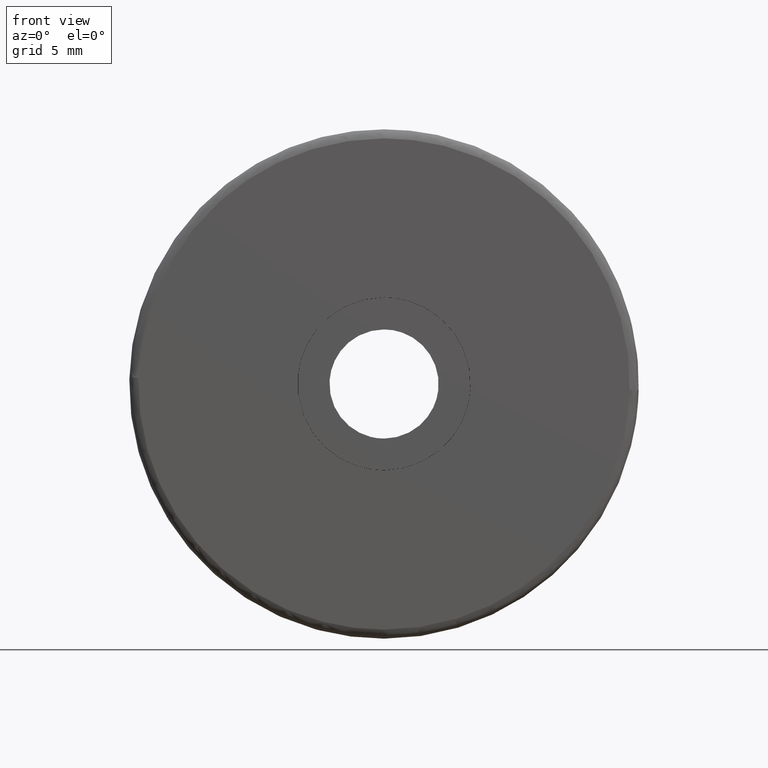
[diagram: clean part render]
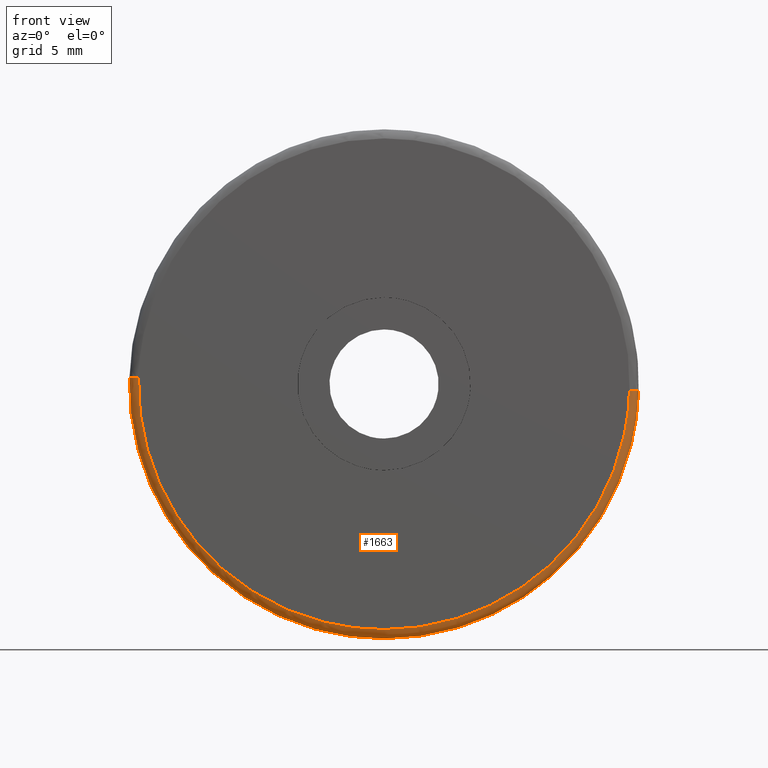
[diagram: same view with one face highlighted and labeled with its STEP entity id]
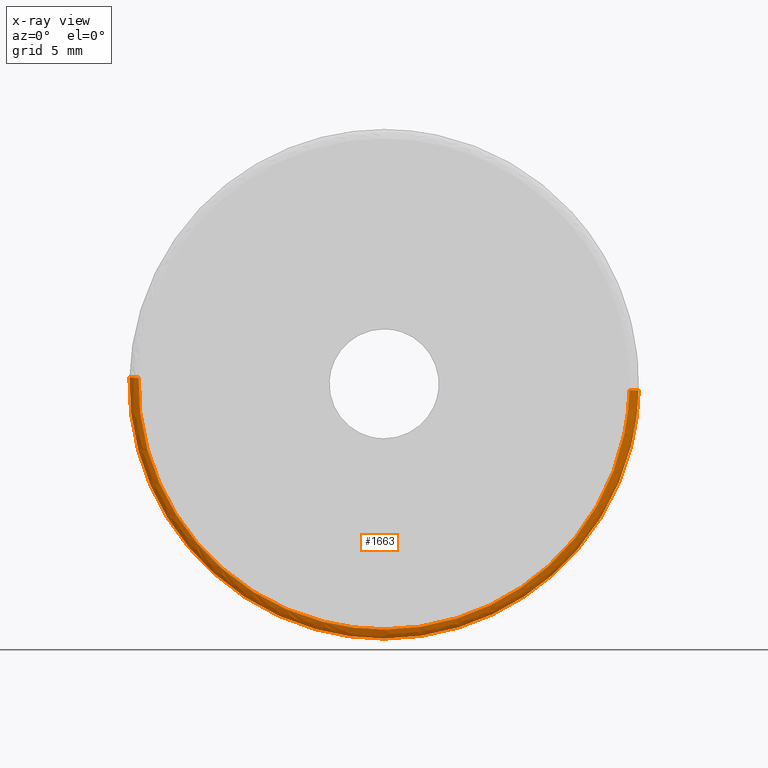
[diagram: x-ray of the same camera — body ghosted, the highlighted face saturated]
A machine part, front view. The second image highlights one B-rep face of the part: STEP entity #1663.
The next image is the same camera in x-ray: the body ghosted, the highlighted face saturated — about 0% of this face is hidden behind the body in this view.
In plain terms, the highlighted face is a freeform B-spline surface patch.
Its self-contained STEP definition (entity closure, byte-faithful):
#1172=CARTESIAN_POINT('',(-13.995578649966189,0.499999999717171,0.351821336206924));
#1173=VERTEX_POINT('',#1172);
#1265=CARTESIAN_POINT('',(13.995578649966189,0.499999999717171,-0.351821336206922));
#1266=VERTEX_POINT('',#1265);
#1282=CARTESIAN_POINT('',(0.0,0.500000000000000,-14.0));
#1283=VERTEX_POINT('',#1282);
#1284=CARTESIAN_POINT('',(0.0,0.500000000000000,-14.0));
#1285=CARTESIAN_POINT('',(13.652490266528705,0.500000000000000,-14.0));
#1286=CARTESIAN_POINT('',(13.995578649966191,0.499999999717171,-0.351821336206922));
#1294=(BOUNDED_CURVE()B_SPLINE_CURVE(2,(#1284,#1285,#1286),.UNSPECIFIED.,.F.,.U.)B_SPLINE_CURVE_WITH_KNOTS((3,3),(0.0,0.245579891769803),.UNSPECIFIED.)CURVE()GEOMETRIC_REPRESENTATION_ITEM()RATIONAL_B_SPLINE_CURVE((1.0,0.712285260094733,0.989826157681565))REPRESENTATION_ITEM(''));
#1295=EDGE_CURVE('',#1283,#1266,#1294,.T.);
#1297=CARTESIAN_POINT('',(-13.995578649966195,0.499999999717171,0.351821336206924));
#1298=CARTESIAN_POINT('',(-13.999999999999995,0.500000000000000,0.175938449727513));
#1299=CARTESIAN_POINT('',(-14.0,0.500000000000000,-1.642359E-016));
#1300=CARTESIAN_POINT('',(-13.999999999999998,0.500000000000000,-13.999999999999998));
#1301=CARTESIAN_POINT('',(0.0,0.500000000000000,-14.0));
#1309=(BOUNDED_CURVE()B_SPLINE_CURVE(2,(#1297,#1298,#1299,#1300,#1301),.UNSPECIFIED.,.F.,.U.)B_SPLINE_CURVE_WITH_KNOTS((3,2,3),(0.745579891769803,0.750000000000000,1.0),.UNSPECIFIED.)CURVE()GEOMETRIC_REPRESENTATION_ITEM()RATIONAL_B_SPLINE_CURVE((0.989826157681565,0.994821521091815,1.0,0.707106781186547,1.0))REPRESENTATION_ITEM(''));
#1310=EDGE_CURVE('',#1173,#1283,#1309,.T.);
#1576=CARTESIAN_POINT('',(-13.994362186306759,0.534862117464669,0.351790756701525));
#1577=CARTESIAN_POINT('',(-14.346152943008287,0.534862117464669,-13.642571429605232));
#1578=CARTESIAN_POINT('',(-0.351790756701529,0.534862117464669,-13.994362186306759));
#1579=CARTESIAN_POINT('',(13.642571429605228,0.534862117464669,-14.346152943008287));
#1580=CARTESIAN_POINT('',(13.994362186306759,0.534862117464669,-0.351790756701530));
#1581=CARTESIAN_POINT('',(-14.034436065313001,-0.038668454222874,0.352798135246677));
#1582=CARTESIAN_POINT('',(-14.387234200559684,-0.038668454222874,-13.681637930066321));
#1583=CARTESIAN_POINT('',(-0.352798135246681,-0.038668454222874,-14.034436065313001));
#1584=CARTESIAN_POINT('',(13.681637930066321,-0.038668454222874,-14.387234200559684));
#1585=CARTESIAN_POINT('',(14.034436065313001,-0.038668454222874,-0.352798135246682));
#1586=CARTESIAN_POINT('',(-13.461071692655768,0.001203861335261,0.338384881978146));
#1587=CARTESIAN_POINT('',(-13.799456574633910,0.001203861335261,-13.122686810677612));
#1588=CARTESIAN_POINT('',(-0.338384881978150,0.001203861335261,-13.461071692655768));
#1589=CARTESIAN_POINT('',(13.122686810677608,0.001203861335261,-13.799456574633913));
#1590=CARTESIAN_POINT('',(13.461071692655768,0.001203861335261,-0.338384881978151));
#1598=(BOUNDED_SURFACE()B_SPLINE_SURFACE(2,2,((#1576,#1581,#1586),(#1577,#1582,#1587),(#1578,#1583,#1588),(#1579,#1584,#1589),(#1580,#1585,#1590)),.UNSPECIFIED.,.F.,.F.,.U.)B_SPLINE_SURFACE_WITH_KNOTS((3,2,3),(3,3),(0.0,23.193943353191301,46.387886706382602),(0.0,0.911185830207336),.UNSPECIFIED.)GEOMETRIC_REPRESENTATION_ITEM()RATIONAL_B_SPLINE_SURFACE(((0.910892962178292,0.599412705021732,0.915967065481264),(0.644098590491372,0.423848788450238,0.647686523345344),(0.910892962178292,0.599412705021732,0.915967065481264),(0.644098590491372,0.423848788450238,0.647686523345344),(0.910892962178292,0.599412705021732,0.915967065481264)))REPRESENTATION_ITEM('')SURFACE());
#1599=CARTESIAN_POINT('',(-13.495736556226859,-1.147476E-015,0.339256288521126));
#1600=VERTEX_POINT('',#1599);
#1601=CARTESIAN_POINT('',(0.0,-2.498002E-015,-13.500000000000000));
#1602=VERTEX_POINT('',#1601);
#1603=CARTESIAN_POINT('',(-13.495736556226861,-1.147476E-015,0.339256288521126));
#1604=CARTESIAN_POINT('',(-13.500000000000002,-2.498002E-015,0.169654933679010));
#1605=CARTESIAN_POINT('',(-13.500000000000000,-2.498002E-015,-1.642359E-016));
#1606=CARTESIAN_POINT('',(-13.500000000000000,-2.498002E-015,-13.500000000000000));
#1607=CARTESIAN_POINT('',(0.0,-2.498002E-015,-13.500000000000000));
#1615=(BOUNDED_CURVE()B_SPLINE_CURVE(2,(#1603,#1604,#1605,#1606,#1607),.UNSPECIFIED.,.F.,.U.)B_SPLINE_CURVE_WITH_KNOTS((3,2,3),(0.745579891769461,0.750000000000000,1.0),.UNSPECIFIED.)CURVE()GEOMETRIC_REPRESENTATION_ITEM()RATIONAL_B_SPLINE_CURVE((0.989826157680792,0.994821521091414,1.0,0.707106781186548,1.0))REPRESENTATION_ITEM(''));
#1616=EDGE_CURVE('',#1600,#1602,#1615,.T.);
#1617=ORIENTED_EDGE('',*,*,#1616,.F.);
#1618=CARTESIAN_POINT('',(-13.995578649966193,0.499999999717171,0.351821336206924));
#1619=CARTESIAN_POINT('',(-13.995578649400715,1.805870E-009,0.351821336192510));
#1620=CARTESIAN_POINT('',(-13.495736556226856,-1.147476E-015,0.339256288521126));
#1628=(BOUNDED_CURVE()B_SPLINE_CURVE(2,(#1618,#1619,#1620),.UNSPECIFIED.,.F.,.U.)B_SPLINE_CURVE_WITH_KNOTS((3,3),(-1.723441280819978,-0.263586882665848),.UNSPECIFIED.)CURVE()GEOMETRIC_REPRESENTATION_ITEM()RATIONAL_B_SPLINE_CURVE((0.883897566728140,0.626638728105204,0.888510407721483))REPRESENTATION_ITEM(''));
#1629=EDGE_CURVE('',#1173,#1600,#1628,.T.);
#1630=ORIENTED_EDGE('',*,*,#1629,.F.);
#1631=ORIENTED_EDGE('',*,*,#1310,.T.);
#1632=ORIENTED_EDGE('',*,*,#1295,.T.);
#1633=CARTESIAN_POINT('',(13.495736556226859,-1.155286E-015,-0.339256288521124));
#1634=VERTEX_POINT('',#1633);
#1635=CARTESIAN_POINT('',(13.995578649966195,0.499999999717171,-0.351821336206922));
#1636=CARTESIAN_POINT('',(13.995578649400716,1.805872E-009,-0.351821336192508));
#1637=CARTESIAN_POINT('',(13.495736556226866,-1.155286E-015,-0.339256288521124));
#1645=(BOUNDED_CURVE()B_SPLINE_CURVE(2,(#1635,#1636,#1637),.UNSPECIFIED.,.F.,.U.)B_SPLINE_CURVE_WITH_KNOTS((3,3),(-1.723441280819978,-0.263586882665852),.UNSPECIFIED.)CURVE()GEOMETRIC_REPRESENTATION_ITEM()RATIONAL_B_SPLINE_CURVE((0.883897566728140,0.626638728105205,0.888510407721482))REPRESENTATION_ITEM(''));
#1646=EDGE_CURVE('',#1266,#1634,#1645,.T.);
#1647=ORIENTED_EDGE('',*,*,#1646,.T.);
#1648=CARTESIAN_POINT('',(0.0,-2.498002E-015,-13.500000000000000));
#1649=CARTESIAN_POINT('',(13.164901328412657,-2.498002E-015,-13.499999999999998));
#1650=CARTESIAN_POINT('',(13.495736556226861,-1.155286E-015,-0.339256288521124));
#1658=(BOUNDED_CURVE()B_SPLINE_CURVE(2,(#1648,#1649,#1650),.UNSPECIFIED.,.F.,.U.)B_SPLINE_CURVE_WITH_KNOTS((3,3),(0.0,0.245579891769461),.UNSPECIFIED.)CURVE()GEOMETRIC_REPRESENTATION_ITEM()RATIONAL_B_SPLINE_CURVE((1.0,0.712285260095134,0.989826157680792))REPRESENTATION_ITEM(''));
#1659=EDGE_CURVE('',#1602,#1634,#1658,.T.);
#1660=ORIENTED_EDGE('',*,*,#1659,.F.);
#1661=EDGE_LOOP('',(#1617,#1630,#1631,#1632,#1647,#1660));
#1662=FACE_OUTER_BOUND('',#1661,.T.);
#1663=ADVANCED_FACE('',(#1662),#1598,.T.);